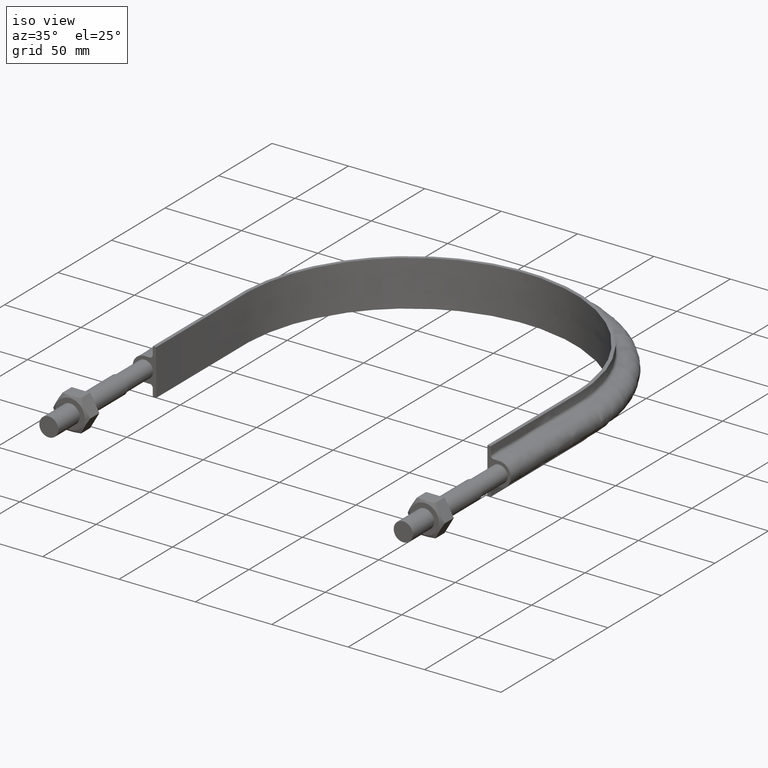
[diagram: clean part render]
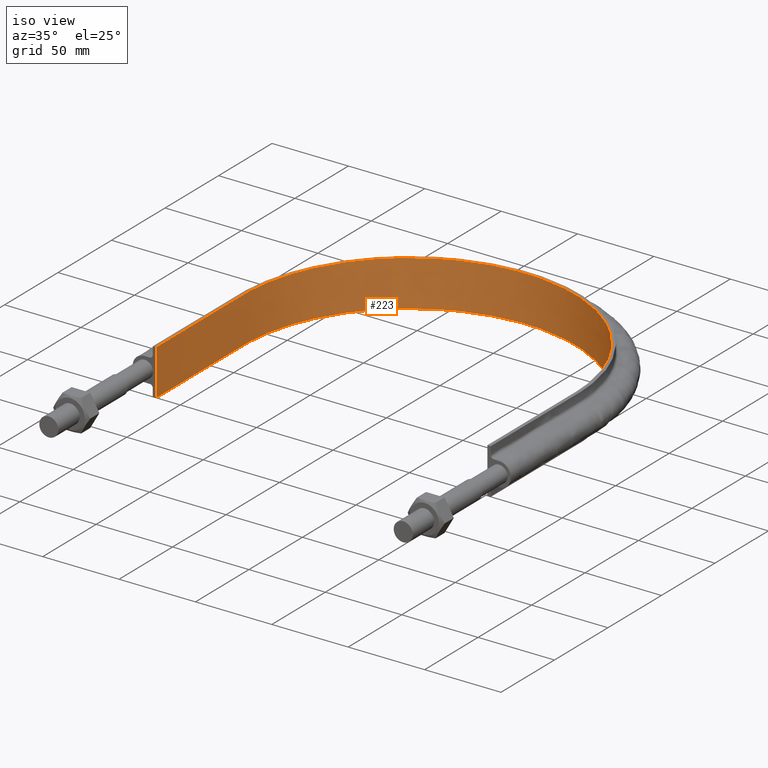
[diagram: same view with one face highlighted and labeled with its STEP entity id]
A machine part, iso view. The second image highlights one B-rep face of the part: STEP entity #223.
In plain terms, the highlighted face is a SurfaceOfExtrusion surface.
Its self-contained STEP definition (entity closure, byte-faithful):
#223 = ADVANCED_FACE( '', ( #270 ), #271, .T. );
#270 = FACE_OUTER_BOUND( '', #558, .T. );
#271 = SURFACE_OF_LINEAR_EXTRUSION( '', #559, #560 );
#558 = EDGE_LOOP( '', ( #1387, #1388, #1389, #1390 ) );
#559 = B_SPLINE_CURVE_WITH_KNOTS( '', 3, ( #1391, #1392, #1393, #1394, #1395, #1396, #1397, #1398, #1399, #1400, #1401, #1402, #1403, #1404, #1405, #1406, #1407 ), .UNSPECIFIED., .F., .F., ( 4, 3, 1, 1, 1, 1, 1, 1, 1, 3, 4 ), ( -10.0000000000000, -9.00000000000000, -8.00000000000000, -7.00000000000000, -6.00000000000000, -5.00000000000000, -4.00000000000000, -3.00000000000000, -2.00000000000000, -1.00000000000000, 0.000000000000000 ), .UNSPECIFIED. );
#560 = VECTOR( '', #1408, 1000.00000000000 );
#1387 = ORIENTED_EDGE( '', *, *, #1662, .F. );
#1388 = ORIENTED_EDGE( '', *, *, #1653, .F. );
#1389 = ORIENTED_EDGE( '', *, *, #1658, .T. );
#1390 = ORIENTED_EDGE( '', *, *, #1665, .T. );
#1391 = CARTESIAN_POINT( '', ( -108.400000000000, 89.5000000000001, -338.759662970140 ) );
#1392 = CARTESIAN_POINT( '', ( -108.400000000000, 116.866666666667, -338.759662970140 ) );
#1393 = CARTESIAN_POINT( '', ( -108.400000000000, 144.233333333333, -338.759662970140 ) );
#1394 = CARTESIAN_POINT( '', ( -108.400000000000, 171.600000000000, -338.759662970140 ) );
#1395 = CARTESIAN_POINT( '', ( -108.400000000000, 185.774498518656, -338.759662970140 ) );
#1396 = CARTESIAN_POINT( '', ( -102.755814879494, 214.168943035043, -338.759662970140 ) );
#1397 = CARTESIAN_POINT( '', ( -78.6458958671129, 250.244256009620, -338.759662970140 ) );
#1398 = CARTESIAN_POINT( '', ( -42.5628521357854, 274.356283410206, -338.759662970140 ) );
#1399 = CARTESIAN_POINT( '', ( 7.62679078902217E-014, 282.821858294897, -338.759662970140 ) );
#1400 = CARTESIAN_POINT( '', ( 42.5628521357854, 274.356283410206, -338.759662970140 ) );
#1401 = CARTESIAN_POINT( '', ( 78.6458958671129, 250.244256009621, -338.759662970140 ) );
#1402 = CARTESIAN_POINT( '', ( 102.755814879494, 214.168943035043, -338.759662970140 ) );
#1403 = CARTESIAN_POINT( '', ( 108.400000000000, 185.774498518656, -338.759662970140 ) );
#1404 = CARTESIAN_POINT( '', ( 108.400000000000, 171.600000000000, -338.759662970140 ) );
#1405 = CARTESIAN_POINT( '', ( 108.400000000000, 144.233333333333, -338.759662970140 ) );
#1406 = CARTESIAN_POINT( '', ( 108.400000000000, 116.866666666667, -338.759662970140 ) );
#1407 = CARTESIAN_POINT( '', ( 108.400000000000, 89.5000000000000, -338.759662970140 ) );
#1408 = DIRECTION( '', ( 0.000000000000000, 0.000000000000000, 1.00000000000000 ) );
#1653 = EDGE_CURVE( '', #1735, #1736, #1737, .T. );
#1658 = EDGE_CURVE( '', #1735, #1745, #1746, .T. );
#1662 = EDGE_CURVE( '', #1736, #1752, #1753, .T. );
#1665 = EDGE_CURVE( '', #1745, #1752, #1757, .T. );
#1735 = VERTEX_POINT( '', #1883 );
#1736 = VERTEX_POINT( '', #1884 );
#1737 = LINE( '', #1885, #1886 );
#1745 = VERTEX_POINT( '', #1936 );
#1746 = B_SPLINE_CURVE_WITH_KNOTS( '', 3, ( #1937, #1938, #1939, #1940, #1941, #1942, #1943, #1944, #1945, #1946, #1947, #1948, #1949, #1950, #1951, #1952, #1953 ), .UNSPECIFIED., .F., .F., ( 4, 3, 1, 1, 1, 1, 1, 1, 1, 3, 4 ), ( -10.0000000000000, -9.00000000000000, -8.00000000000000, -7.00000000000000, -6.00000000000000, -5.00000000000000, -4.00000000000000, -3.00000000000000, -2.00000000000000, -1.00000000000000, 0.000000000000000 ), .UNSPECIFIED. );
#1752 = VERTEX_POINT( '', #1986 );
#1753 = B_SPLINE_CURVE_WITH_KNOTS( '', 3, ( #1987, #1988, #1989, #1990, #1991, #1992, #1993, #1994, #1995, #1996, #1997, #1998, #1999, #2000, #2001, #2002, #2003 ), .UNSPECIFIED., .F., .F., ( 4, 3, 1, 1, 1, 1, 1, 1, 1, 3, 4 ), ( -10.0000000000000, -9.00000000000000, -8.00000000000000, -7.00000000000000, -6.00000000000000, -5.00000000000000, -4.00000000000000, -3.00000000000000, -2.00000000000000, -1.00000000000000, 0.000000000000000 ), .UNSPECIFIED. );
#1757 = LINE( '', #2024, #2025 );
#1883 = CARTESIAN_POINT( '', ( -108.400000000000, 89.5000000000003, -15.0000000000000 ) );
#1884 = CARTESIAN_POINT( '', ( -108.400000000000, 89.5000000000003, 15.0000000000000 ) );
#1885 = CARTESIAN_POINT( '', ( -108.400000000000, 89.5000000000001, -338.759662970140 ) );
#1886 = VECTOR( '', #2385, 1000.00000000000 );
#1936 = CARTESIAN_POINT( '', ( 108.400000000000, 89.5000000000000, -15.0000000000000 ) );
#1937 = CARTESIAN_POINT( '', ( -108.400000000000, 89.5000000000001, -15.0000000000000 ) );
#1938 = CARTESIAN_POINT( '', ( -108.400000000000, 116.866666666667, -15.0000000000000 ) );
#1939 = CARTESIAN_POINT( '', ( -108.400000000000, 144.233333333333, -15.0000000000000 ) );
#1940 = CARTESIAN_POINT( '', ( -108.400000000000, 171.600000000000, -15.0000000000000 ) );
#1941 = CARTESIAN_POINT( '', ( -108.400000000000, 185.774498518656, -15.0000000000000 ) );
#1942 = CARTESIAN_POINT( '', ( -102.755814879494, 214.168943035043, -15.0000000000000 ) );
#1943 = CARTESIAN_POINT( '', ( -78.6458958671129, 250.244256009620, -15.0000000000000 ) );
#1944 = CARTESIAN_POINT( '', ( -42.5628521357854, 274.356283410206, -15.0000000000000 ) );
#1945 = CARTESIAN_POINT( '', ( 7.62679078902217E-014, 282.821858294897, -15.0000000000000 ) );
#1946 = CARTESIAN_POINT( '', ( 42.5628521357854, 274.356283410206, -15.0000000000000 ) );
#1947 = CARTESIAN_POINT( '', ( 78.6458958671129, 250.244256009621, -15.0000000000000 ) );
#1948 = CARTESIAN_POINT( '', ( 102.755814879494, 214.168943035043, -15.0000000000000 ) );
#1949 = CARTESIAN_POINT( '', ( 108.400000000000, 185.774498518656, -15.0000000000000 ) );
#1950 = CARTESIAN_POINT( '', ( 108.400000000000, 171.600000000000, -15.0000000000000 ) );
#1951 = CARTESIAN_POINT( '', ( 108.400000000000, 144.233333333333, -15.0000000000000 ) );
#1952 = CARTESIAN_POINT( '', ( 108.400000000000, 116.866666666667, -15.0000000000000 ) );
#1953 = CARTESIAN_POINT( '', ( 108.400000000000, 89.5000000000000, -15.0000000000000 ) );
#1986 = CARTESIAN_POINT( '', ( 108.400000000000, 89.5000000000003, 15.0000000000000 ) );
#1987 = CARTESIAN_POINT( '', ( -108.400000000000, 89.5000000000001, 15.0000000000001 ) );
#1988 = CARTESIAN_POINT( '', ( -108.400000000000, 116.866666666667, 15.0000000000001 ) );
#1989 = CARTESIAN_POINT( '', ( -108.400000000000, 144.233333333333, 15.0000000000001 ) );
#1990 = CARTESIAN_POINT( '', ( -108.400000000000, 171.600000000000, 15.0000000000001 ) );
#1991 = CARTESIAN_POINT( '', ( -108.400000000000, 185.774498518656, 15.0000000000001 ) );
#1992 = CARTESIAN_POINT( '', ( -102.755814879494, 214.168943035043, 15.0000000000001 ) );
#1993 = CARTESIAN_POINT( '', ( -78.6458958671129, 250.244256009620, 15.0000000000001 ) );
#1994 = CARTESIAN_POINT( '', ( -42.5628521357854, 274.356283410206, 15.0000000000001 ) );
#1995 = CARTESIAN_POINT( '', ( 7.62679078902217E-014, 282.821858294897, 15.0000000000001 ) );
#1996 = CARTESIAN_POINT( '', ( 42.5628521357854, 274.356283410206, 15.0000000000001 ) );
#1997 = CARTESIAN_POINT( '', ( 78.6458958671129, 250.244256009621, 15.0000000000001 ) );
#1998 = CARTESIAN_POINT( '', ( 102.755814879494, 214.168943035043, 15.0000000000001 ) );
#1999 = CARTESIAN_POINT( '', ( 108.400000000000, 185.774498518656, 15.0000000000001 ) );
#2000 = CARTESIAN_POINT( '', ( 108.400000000000, 171.600000000000, 15.0000000000001 ) );
#2001 = CARTESIAN_POINT( '', ( 108.400000000000, 144.233333333333, 15.0000000000001 ) );
#2002 = CARTESIAN_POINT( '', ( 108.400000000000, 116.866666666667, 15.0000000000001 ) );
#2003 = CARTESIAN_POINT( '', ( 108.400000000000, 89.5000000000000, 15.0000000000001 ) );
#2024 = CARTESIAN_POINT( '', ( 108.400000000000, 89.5000000000000, -338.759662970140 ) );
#2025 = VECTOR( '', #2390, 1000.00000000000 );
#2385 = DIRECTION( '', ( 0.000000000000000, 0.000000000000000, 1.00000000000000 ) );
#2390 = DIRECTION( '', ( 0.000000000000000, 0.000000000000000, 1.00000000000000 ) );